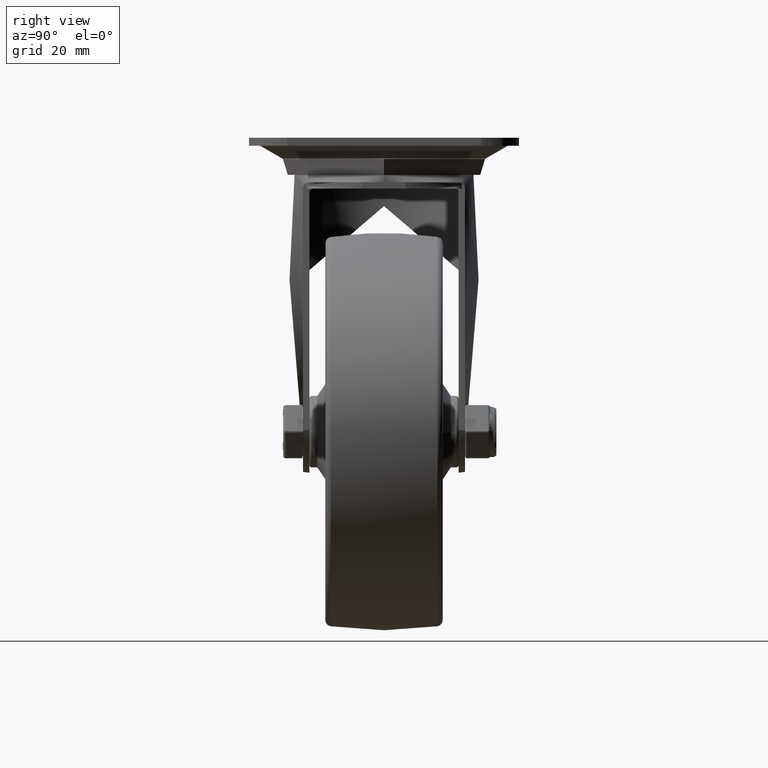
[diagram: clean part render]
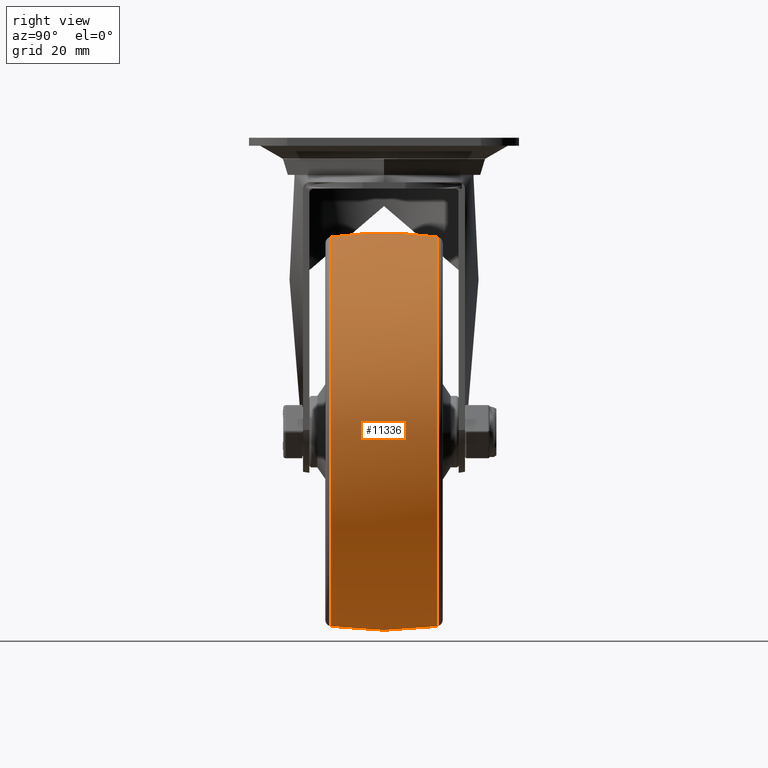
[diagram: same view with one face highlighted and labeled with its STEP entity id]
A machine part, right view. The second image highlights one B-rep face of the part: STEP entity #11336.
In plain terms, the highlighted face is a freeform B-spline surface patch.
Its self-contained STEP definition (entity closure, byte-faithful):
#54=(
BOUNDED_SURFACE()
B_SPLINE_SURFACE(2,2,((#17110,#17111,#17112,#17113,#17114,#17115,#17116,
#17117,#17118),(#17119,#17120,#17121,#17122,#17123,#17124,#17125,#17126,
#17127),(#17128,#17129,#17130,#17131,#17132,#17133,#17134,#17135,#17136)),
 .UNSPECIFIED.,.F.,.T.,.F.)
B_SPLINE_SURFACE_WITH_KNOTS((3,3),(3,2,2,2,3),(-0.146759643319934,0.146759643319934),
(-3.14159265358979,-1.5707963267949,0.,1.5707963267949,3.14159265358979),
 .UNSPECIFIED.)
GEOMETRIC_REPRESENTATION_ITEM()
RATIONAL_B_SPLINE_SURFACE(((1.,0.707106781186548,1.,0.707106781186548,1.,
0.707106781186548,1.,0.707106781186548,1.),(0.989250118939655,0.699505467391829,
0.989250118939655,0.699505467391829,0.989250118939655,0.699505467391829,
0.989250118939655,0.699505467391829,0.989250118939655),(1.,0.707106781186548,
1.,0.707106781186548,1.,0.707106781186548,1.,0.707106781186548,1.)))
REPRESENTATION_ITEM('')
SURFACE()
);
#1522=FACE_OUTER_BOUND('',#2248,.T.);
#2248=EDGE_LOOP('',(#8249,#8250,#8251,#8252));
#4523=CIRCLE('',#12294,61.2655553249018);
#4524=CIRCLE('',#12295,114.833333333333);
#4525=CIRCLE('',#12296,61.2655553249018);
#5054=VERTEX_POINT('',#17107);
#5055=VERTEX_POINT('',#17137);
#6270=EDGE_CURVE('',#5054,#5054,#4523,.T.);
#6271=EDGE_CURVE('',#5054,#5055,#4524,.T.);
#6272=EDGE_CURVE('',#5055,#5055,#4525,.T.);
#8249=ORIENTED_EDGE('',*,*,#6270,.F.);
#8250=ORIENTED_EDGE('',*,*,#6271,.T.);
#8251=ORIENTED_EDGE('',*,*,#6272,.T.);
#8252=ORIENTED_EDGE('',*,*,#6271,.F.);
#11336=ADVANCED_FACE('',(#1522),#54,.F.);
#12294=AXIS2_PLACEMENT_3D('',#17109,#13654,#13655);
#12295=AXIS2_PLACEMENT_3D('',#17138,#13656,#13657);
#12296=AXIS2_PLACEMENT_3D('',#17139,#13658,#13659);
#13654=DIRECTION('center_axis',(-3.71352796603441E-15,1.,0.));
#13655=DIRECTION('ref_axis',(-1.,-3.71352796603441E-15,0.));
#13656=DIRECTION('center_axis',(1.,3.71352796603441E-15,-1.22464679914735E-16));
#13657=DIRECTION('ref_axis',(1.22464679914735E-16,5.04870979341444E-31,
1.));
#13658=DIRECTION('center_axis',(-3.71352796603441E-15,1.,0.));
#13659=DIRECTION('ref_axis',(-1.,-3.71352796603441E-15,0.));
#17107=CARTESIAN_POINT('',(-4.44480874725277E-14,16.7924667651401,61.2655553249018));
#17109=CARTESIAN_POINT('Origin',(-5.19509540951903E-14,16.7924667651401,
0.));
#17110=CARTESIAN_POINT('Ctrl Pts',(7.27676358069126E-14,-16.7924667651403,
61.2655553249023));
#17111=CARTESIAN_POINT('Ctrl Pts',(61.2655553249023,-16.79246676514,61.2655553249023));
#17112=CARTESIAN_POINT('Ctrl Pts',(61.2655553249024,-16.79246676514,0.));
#17113=CARTESIAN_POINT('Ctrl Pts',(61.2655553249023,-16.79246676514,-61.2655553249023));
#17114=CARTESIAN_POINT('Ctrl Pts',(7.27676358069126E-14,-16.7924667651403,
-61.2655553249023));
#17115=CARTESIAN_POINT('Ctrl Pts',(-61.2655553249022,-16.7924667651405,
-61.2655553249023));
#17116=CARTESIAN_POINT('Ctrl Pts',(-61.2655553249022,-16.7924667651405,
0.));
#17117=CARTESIAN_POINT('Ctrl Pts',(-61.2655553249022,-16.7924667651405,
61.2655553249023));
#17118=CARTESIAN_POINT('Ctrl Pts',(7.27676358069126E-14,-16.7924667651403,
61.2655553249023));
#17119=CARTESIAN_POINT('Ctrl Pts',(1.0408340855861E-14,-4.9960036108132E-14,
63.7478590110475));
#17120=CARTESIAN_POINT('Ctrl Pts',(63.7478590110475,1.86769421104212E-13,
63.7478590110475));
#17121=CARTESIAN_POINT('Ctrl Pts',(63.7478590110475,1.86769421104212E-13,
3.94430452610506E-30));
#17122=CARTESIAN_POINT('Ctrl Pts',(63.7478590110475,1.86769421104212E-13,
-63.7478590110475));
#17123=CARTESIAN_POINT('Ctrl Pts',(1.0408340855861E-14,-4.9960036108132E-14,
-63.7478590110475));
#17124=CARTESIAN_POINT('Ctrl Pts',(-63.7478590110475,-2.86689493320476E-13,
-63.7478590110475));
#17125=CARTESIAN_POINT('Ctrl Pts',(-63.7478590110475,-2.86689493320476E-13,
-3.94430452610506E-30));
#17126=CARTESIAN_POINT('Ctrl Pts',(-63.7478590110475,-2.86689493320476E-13,
63.7478590110475));
#17127=CARTESIAN_POINT('Ctrl Pts',(1.0408340855861E-14,-4.9960036108132E-14,
63.7478590110475));
#17128=CARTESIAN_POINT('Ctrl Pts',(-5.19509540951906E-14,16.7924667651402,
61.2655553249023));
#17129=CARTESIAN_POINT('Ctrl Pts',(61.2655553249022,16.7924667651404,61.2655553249023));
#17130=CARTESIAN_POINT('Ctrl Pts',(61.2655553249022,16.7924667651404,0.));
#17131=CARTESIAN_POINT('Ctrl Pts',(61.2655553249022,16.7924667651404,-61.2655553249023));
#17132=CARTESIAN_POINT('Ctrl Pts',(-5.19509540951906E-14,16.7924667651402,
-61.2655553249023));
#17133=CARTESIAN_POINT('Ctrl Pts',(-61.2655553249023,16.7924667651399,-61.2655553249023));
#17134=CARTESIAN_POINT('Ctrl Pts',(-61.2655553249023,16.7924667651399,0.));
#17135=CARTESIAN_POINT('Ctrl Pts',(-61.2655553249023,16.7924667651399,61.2655553249023));
#17136=CARTESIAN_POINT('Ctrl Pts',(-5.19509540951906E-14,16.7924667651402,
61.2655553249023));
#17137=CARTESIAN_POINT('',(8.0270502429575E-14,-16.7924667651402,61.2655553249018));
#17138=CARTESIAN_POINT('Origin',(3.99935594032329E-15,-4.25085392311431E-14,
-52.3333333333325));
#17139=CARTESIAN_POINT('Origin',(7.27676358069123E-14,-16.7924667651402,
0.));